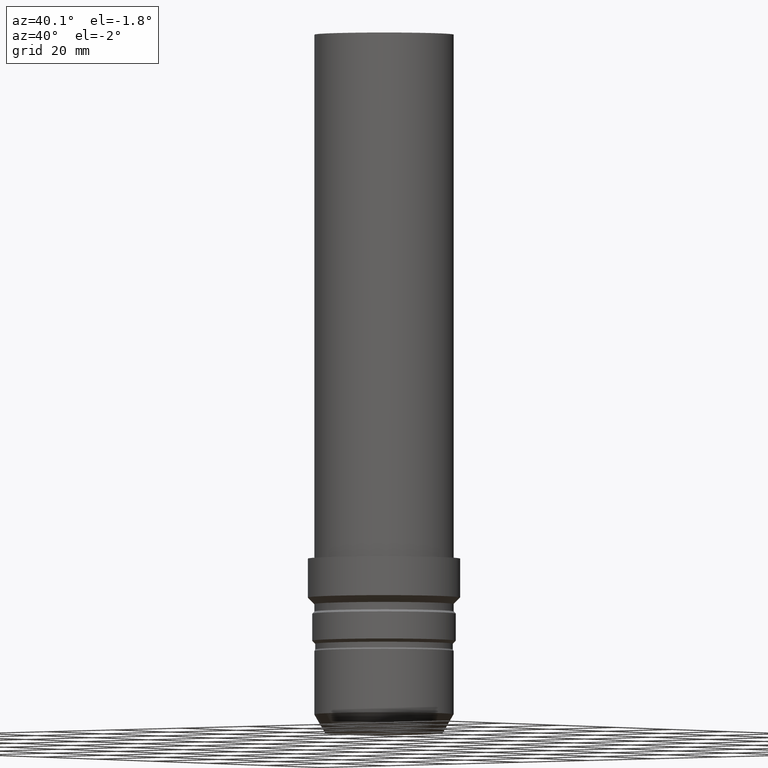
[diagram: clean part render]
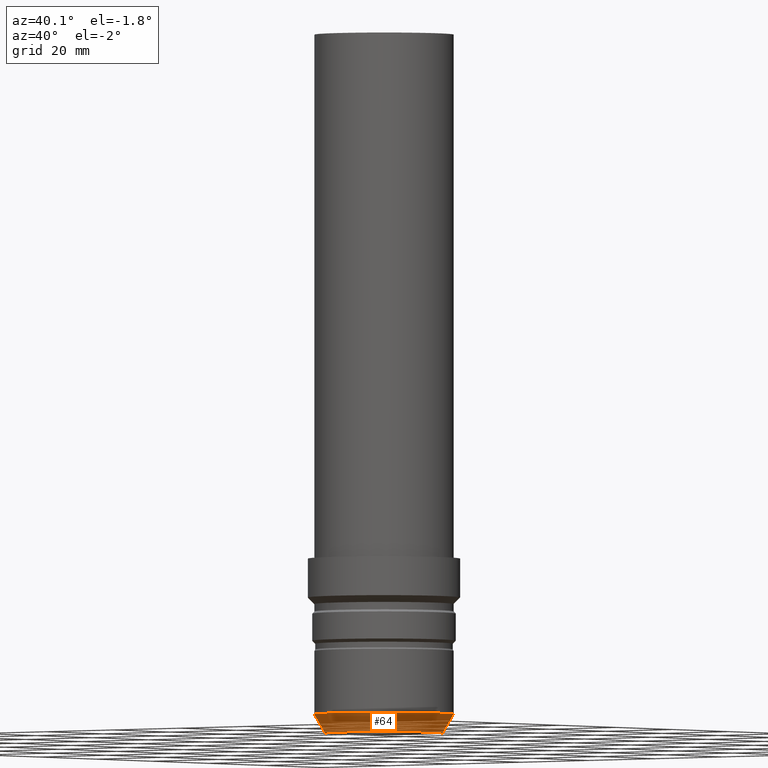
[diagram: same view with one face highlighted and labeled with its STEP entity id]
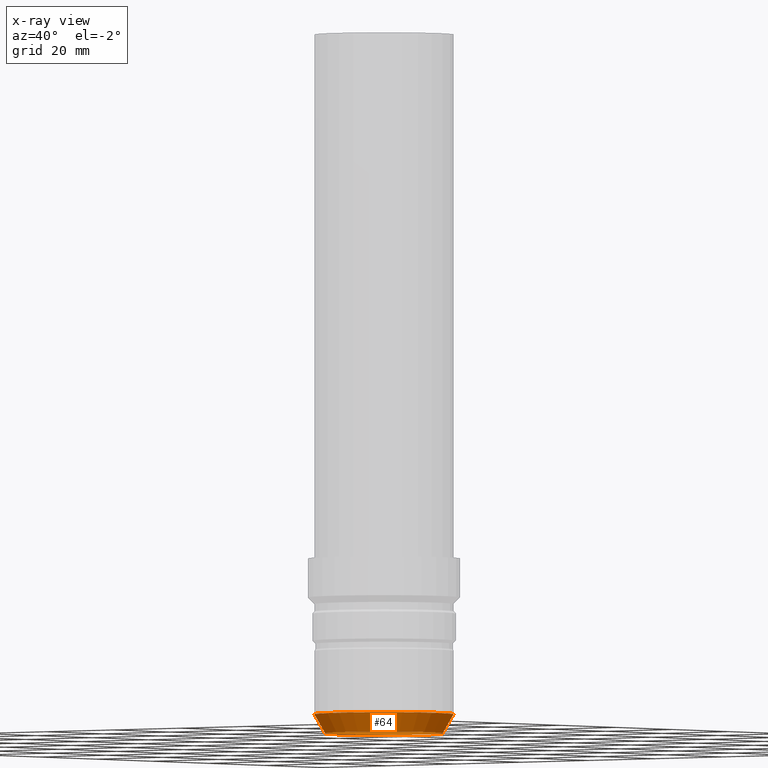
[diagram: x-ray of the same camera — body ghosted, the highlighted face saturated]
A machine part, auxiliary view. The second image highlights one B-rep face of the part: STEP entity #64.
The next image is the same camera in x-ray: the body ghosted, the highlighted face saturated — about 3% of this face is hidden behind the body in this view.
In plain terms, the highlighted conical surface has half-angle 30 deg.
Its self-contained STEP definition (entity closure, byte-faithful):
#64=ADVANCED_FACE('Unnamed[1]',(#158,#159),#160,.T.);
#75=EDGE_CURVE('Unnamed[1]',#175,#175,#176,.T.);
#113=EDGE_CURVE('Unnamed[1]',#234,#234,#235,.T.);
#158=FACE_BOUND('',#279,.T.);
#159=FACE_BOUND('',#280,.T.);
#160=CONICAL_SURFACE('',#281,14.75,0.523598775598304);
#175=VERTEX_POINT('',#301);
#176=CIRCLE('',#302,16.0);
#234=VERTEX_POINT('',#374);
#235=CIRCLE('',#375,13.5000000000001);
#279=EDGE_LOOP('',(#414));
#280=EDGE_LOOP('',(#415));
#281=AXIS2_PLACEMENT_3D('',#416,#417,#418);
#301=CARTESIAN_POINT('',(-2.65143809681212E-016,16.0,4.33012701892196));
#302=AXIS2_PLACEMENT_3D('',#433,#434,#435);
#374=CARTESIAN_POINT('',(1.57772181044202E-030,13.5000000000001,-2.8421709430404E-014));
#375=AXIS2_PLACEMENT_3D('',#497,#498,#499);
#414=ORIENTED_EDGE('',*,*,#113,.F.);
#415=ORIENTED_EDGE('',*,*,#75,.T.);
#416=CARTESIAN_POINT('',(-1.32571904840606E-016,2.96374102911992E-015,2.16506350946099));
#417=DIRECTION('',(-6.12323399573676E-017,1.36889334477654E-015,1.0));
#418=DIRECTION('',(7.89933899219579E-032,1.0,-1.36889334477654E-015));
#433=CARTESIAN_POINT('',(-2.65143809681214E-016,5.92748205823976E-015,4.33012701892198));
#434=DIRECTION('',(6.12323399573676E-017,-1.36889334477661E-015,-1.0));
#435=DIRECTION('',(7.89933899219688E-032,1.0,-1.36889334477661E-015));
#497=CARTESIAN_POINT('',(0.0,0.0,0.0));
#498=DIRECTION('',(6.12323399573677E-017,-1.3688933447767E-015,-1.0));
#499=DIRECTION('',(7.89933899219716E-032,1.0,-1.3688933447767E-015));